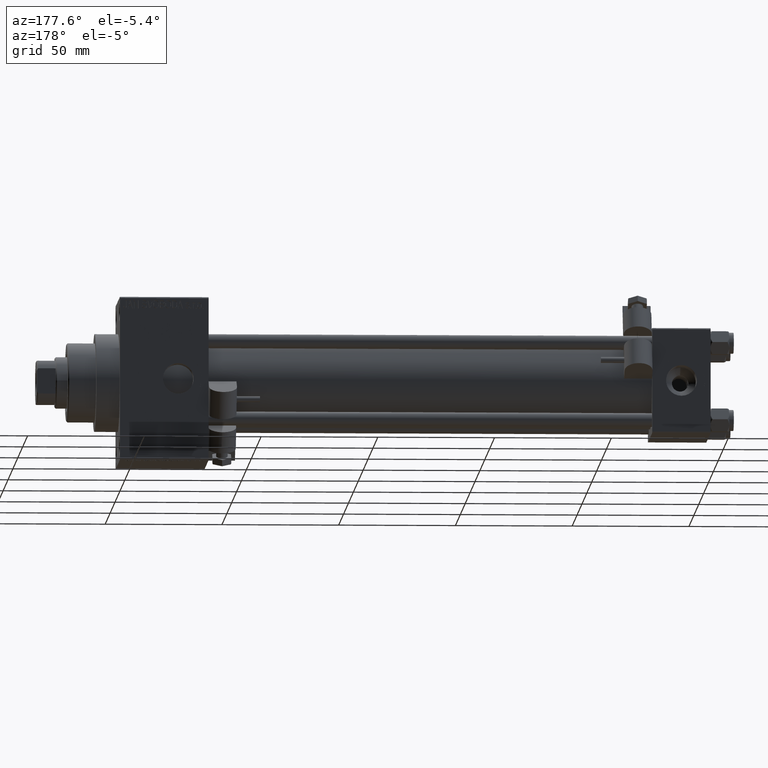
[diagram: clean part render]
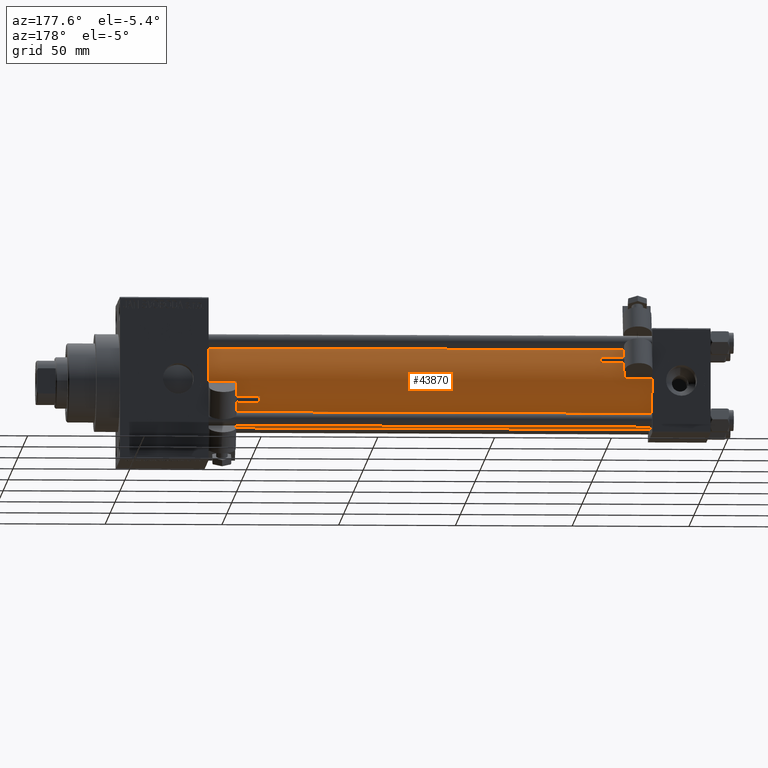
[diagram: same view with one face highlighted and labeled with its STEP entity id]
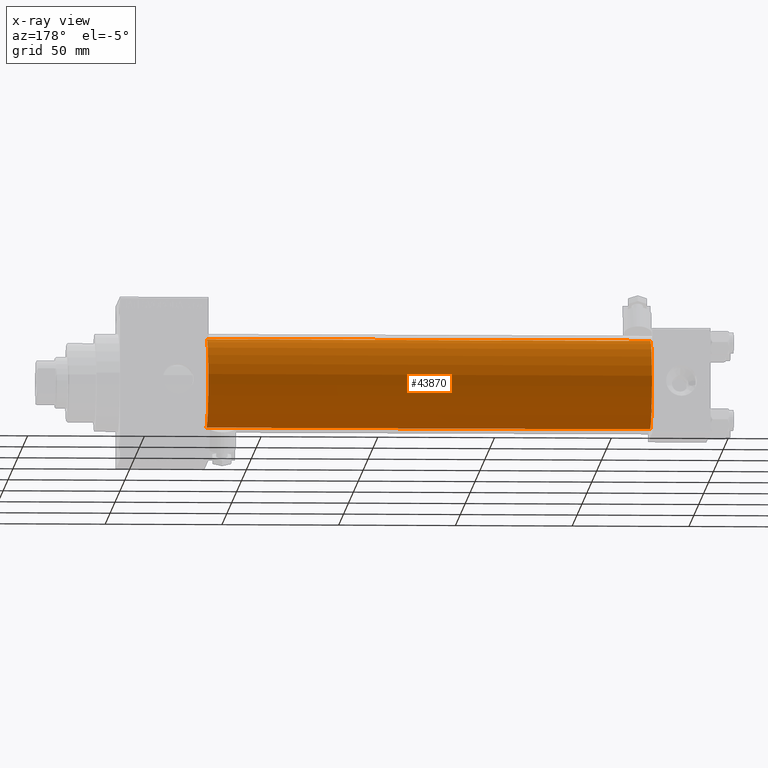
[diagram: x-ray of the same camera — body ghosted, the highlighted face saturated]
A machine part, auxiliary view. The second image highlights one B-rep face of the part: STEP entity #43870.
The next image is the same camera in x-ray: the body ghosted, the highlighted face saturated — about 0% of this face is hidden behind the body in this view.
In plain terms, the highlighted cylindrical surface (partial cylindrical patch) has radius 19 mm, axis along (-1, -0, -0).
Its self-contained STEP definition (entity closure, byte-faithful):
#2401 = CYLINDRICAL_SURFACE ( 'NONE', #43035, 19.00000000000000000 ) ;
#2520 = EDGE_LOOP ( 'NONE', ( #35430, #23028, #29116, #35508 ) ) ;
#2656 = CARTESIAN_POINT ( 'NONE',  ( 215.0000000000000000, -2.602085213965210642E-15, 19.00000000000000000 ) ) ;
#6207 = CARTESIAN_POINT ( 'NONE',  ( 215.0000000000000000, -2.602085213965210642E-15, 0.000000000000000000 ) ) ;
#6752 = CARTESIAN_POINT ( 'NONE',  ( 215.0000000000000000, -2.602085213965210642E-15, 19.00000000000000000 ) ) ;
#6797 = DIRECTION ( 'NONE',  ( 1.000000000000000000, -0.000000000000000000, 0.000000000000000000 ) ) ;
#10606 = CARTESIAN_POINT ( 'NONE',  ( 215.0000000000000000, -2.752562955852396712E-16, -19.00000000000000000 ) ) ;
#11102 = DIRECTION ( 'NONE',  ( 0.000000000000000000, 0.000000000000000000, 1.000000000000000000 ) ) ;
#12913 = CARTESIAN_POINT ( 'NONE',  ( 215.0000000000000000, -2.752562955852396712E-16, -19.00000000000000000 ) ) ;
#12946 = CARTESIAN_POINT ( 'NONE',  ( 24.99999999999999289, -2.602085213965210642E-15, 19.00000000000000000 ) ) ;
#13114 = AXIS2_PLACEMENT_3D ( 'NONE', #47920, #14643, #25776 ) ;
#14643 = DIRECTION ( 'NONE',  ( 1.000000000000000000, 0.000000000000000000, 0.000000000000000000 ) ) ;
#16691 = VERTEX_POINT ( 'NONE', #10606 ) ;
#18607 = DIRECTION ( 'NONE',  ( -1.000000000000000000, -0.000000000000000000, -0.000000000000000000 ) ) ;
#23028 = ORIENTED_EDGE ( 'NONE', *, *, #33786, .T. ) ;
#23171 = EDGE_CURVE ( 'NONE', #42171, #31878, #43739, .T. ) ;
#23373 = VECTOR ( 'NONE', #25044, 1000.000000000000000 ) ;
#24953 = DIRECTION ( 'NONE',  ( 0.000000000000000000, 0.000000000000000000, 1.000000000000000000 ) ) ;
#25044 = DIRECTION ( 'NONE',  ( -1.000000000000000000, -0.000000000000000000, -0.000000000000000000 ) ) ;
#25776 = DIRECTION ( 'NONE',  ( 0.000000000000000000, 0.000000000000000000, -1.000000000000000000 ) ) ;
#29116 = ORIENTED_EDGE ( 'NONE', *, *, #23171, .T. ) ;
#29700 = EDGE_CURVE ( 'NONE', #37851, #31878, #34318, .T. ) ;
#30341 = CARTESIAN_POINT ( 'NONE',  ( 24.99999999999999289, -2.602085213965210642E-15, 0.000000000000000000 ) ) ;
#31878 = VERTEX_POINT ( 'NONE', #12946 ) ;
#33068 = FACE_OUTER_BOUND ( 'NONE', #2520, .T. ) ;
#33570 = DIRECTION ( 'NONE',  ( -1.000000000000000000, -0.000000000000000000, -0.000000000000000000 ) ) ;
#33786 = EDGE_CURVE ( 'NONE', #16691, #42171, #39512, .T. ) ;
#34318 = LINE ( 'NONE', #2656, #40249 ) ;
#34833 = AXIS2_PLACEMENT_3D ( 'NONE', #30341, #6797, #11102 ) ;
#35430 = ORIENTED_EDGE ( 'NONE', *, *, #44607, .F. ) ;
#35508 = ORIENTED_EDGE ( 'NONE', *, *, #29700, .F. ) ;
#35537 = CARTESIAN_POINT ( 'NONE',  ( 24.99999999999999289, -2.752562955852396712E-16, -19.00000000000000000 ) ) ;
#37851 = VERTEX_POINT ( 'NONE', #6752 ) ;
#39512 = LINE ( 'NONE', #12913, #23373 ) ;
#40249 = VECTOR ( 'NONE', #18607, 1000.000000000000000 ) ;
#42171 = VERTEX_POINT ( 'NONE', #35537 ) ;
#43035 = AXIS2_PLACEMENT_3D ( 'NONE', #6207, #33570, #24953 ) ;
#43739 = CIRCLE ( 'NONE', #34833, 19.00000000000000000 ) ;
#43870 = ADVANCED_FACE ( 'NONE', ( #33068 ), #2401, .T. ) ;
#44607 = EDGE_CURVE ( 'NONE', #16691, #37851, #47129, .T. ) ;
#47129 = CIRCLE ( 'NONE', #13114, 19.00000000000000000 ) ;
#47920 = CARTESIAN_POINT ( 'NONE',  ( 215.0000000000000000, -2.602085213965210642E-15, 0.000000000000000000 ) ) ;